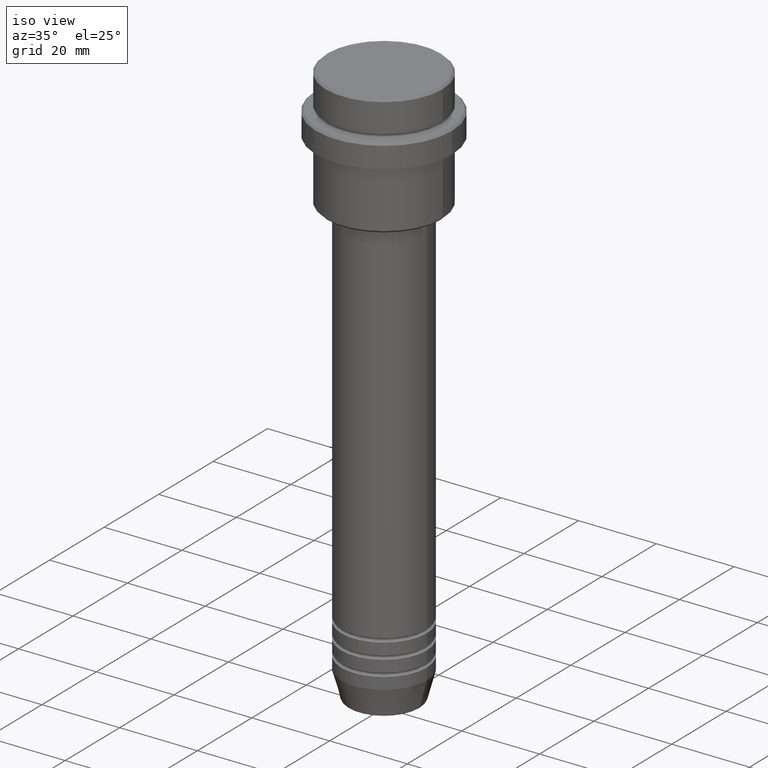
[diagram: clean part render]
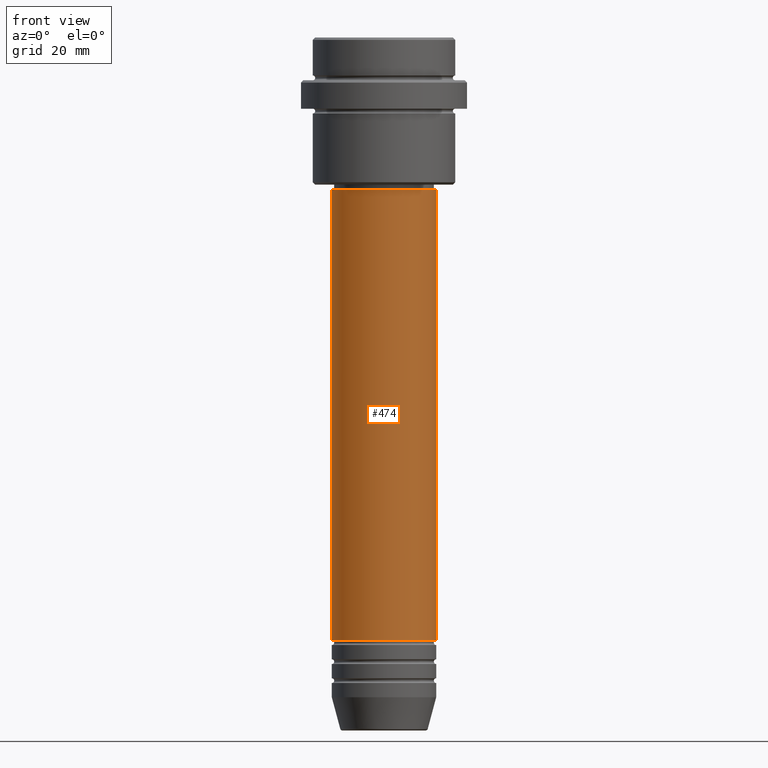
[diagram: tour spotlight — one face highlighted and labeled with its STEP entity id]
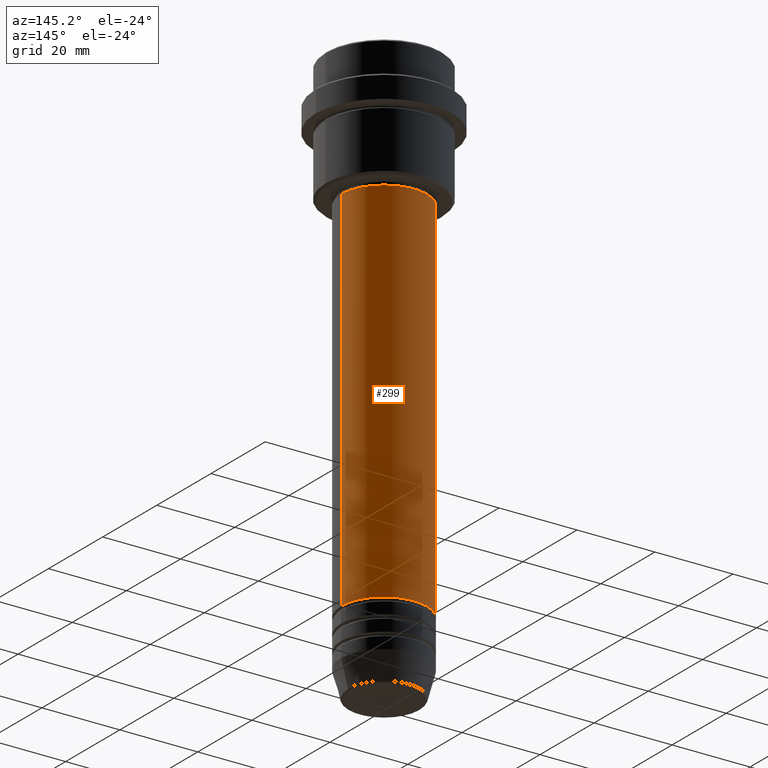
[diagram: tour spotlight — one face highlighted and labeled with its STEP entity id]
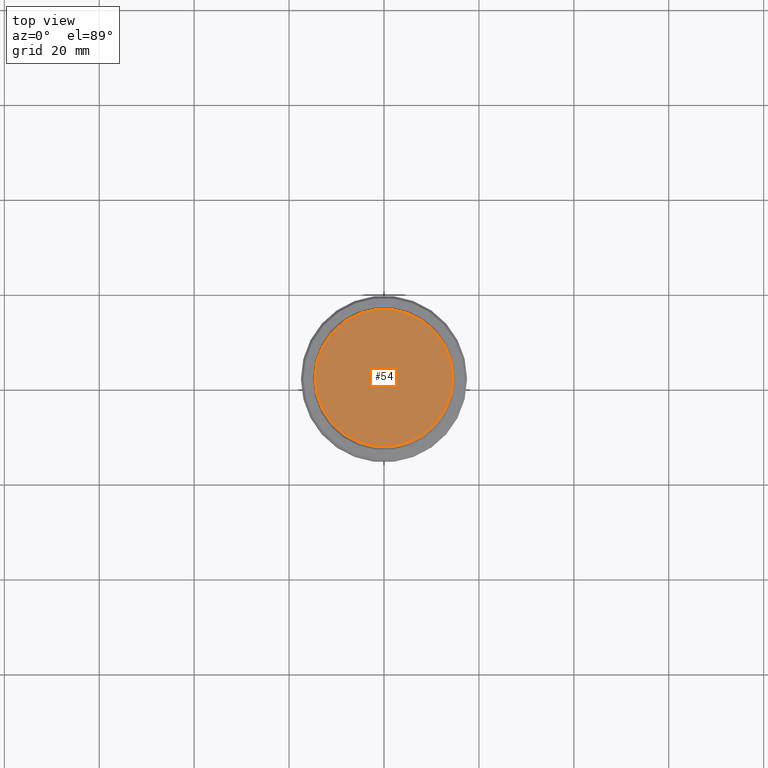
[diagram: tour spotlight — one face highlighted and labeled with its STEP entity id]
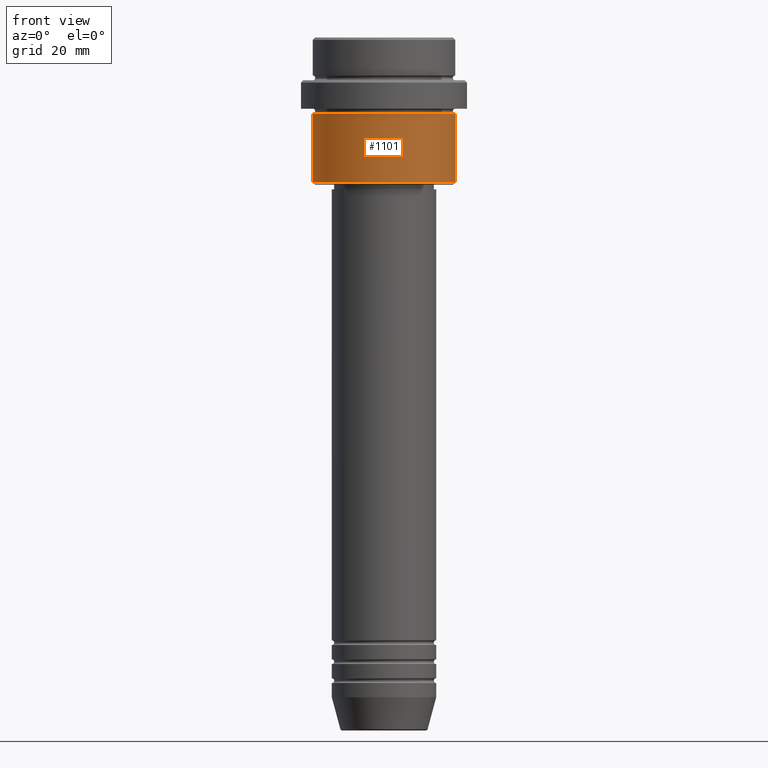
[diagram: tour spotlight — one face highlighted and labeled with its STEP entity id]
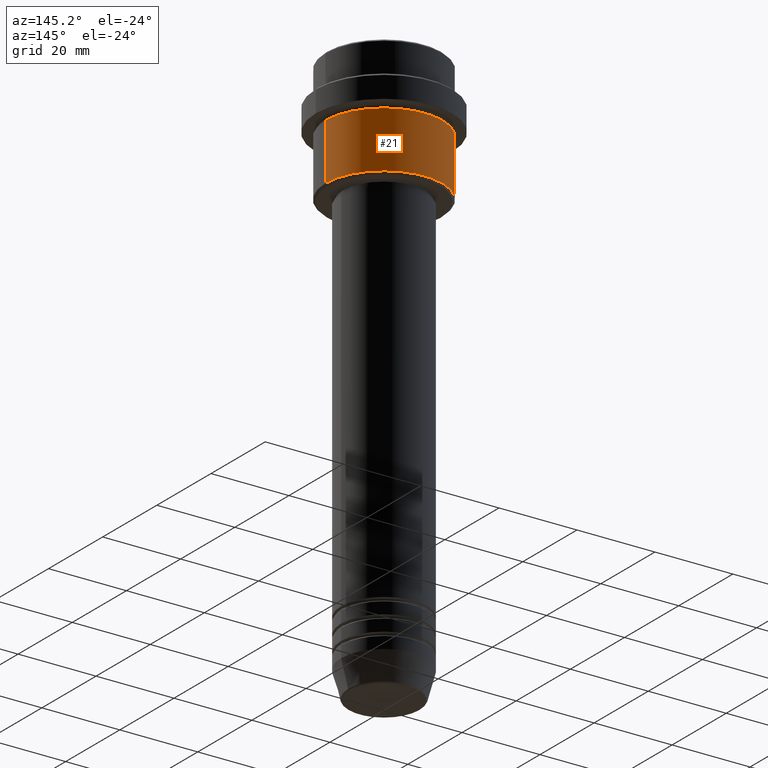
[diagram: tour spotlight — one face highlighted and labeled with its STEP entity id]
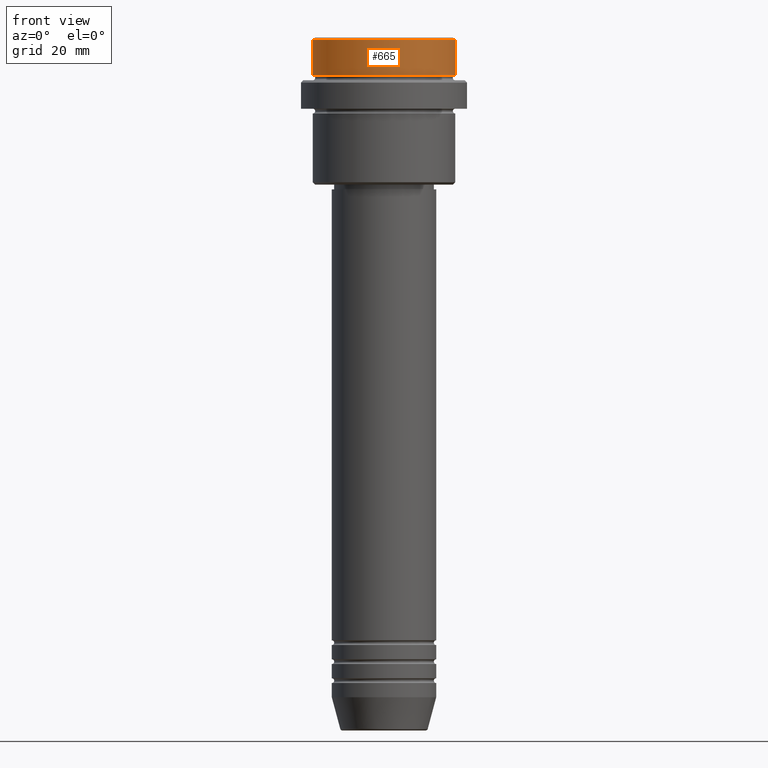
[diagram: tour spotlight — one face highlighted and labeled with its STEP entity id]
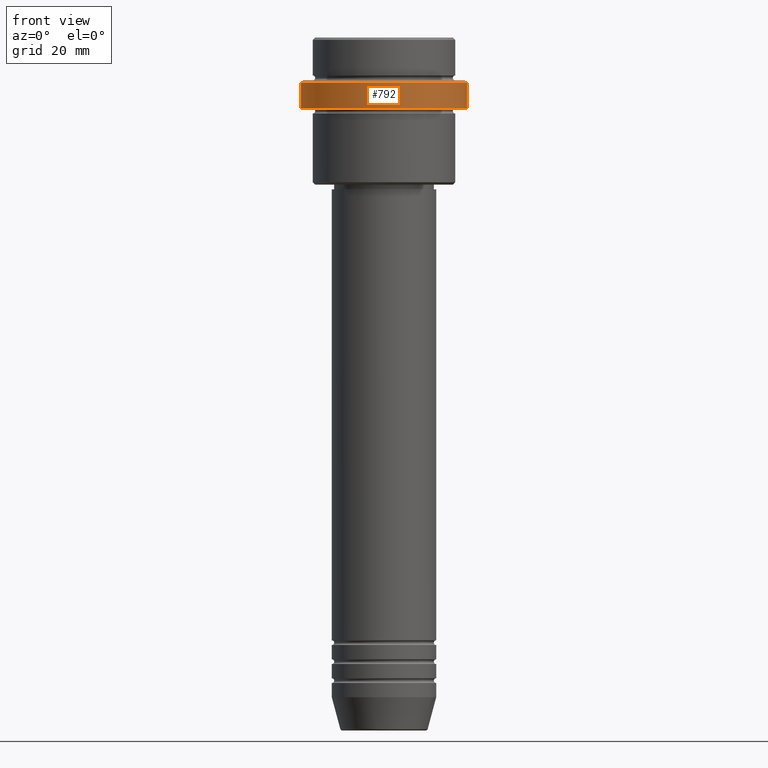
[diagram: tour spotlight — one face highlighted and labeled with its STEP entity id]
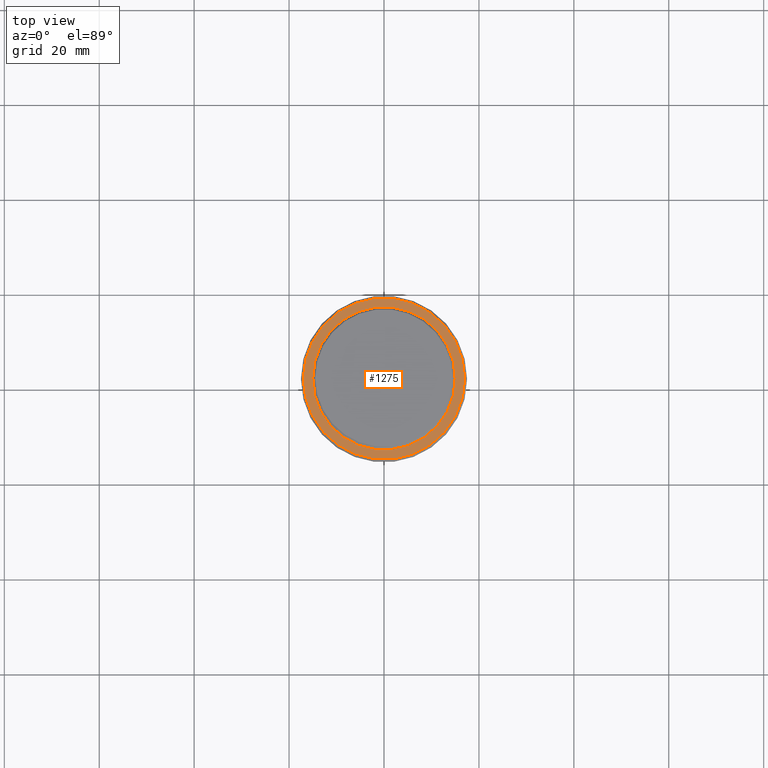
[diagram: tour spotlight — one face highlighted and labeled with its STEP entity id]
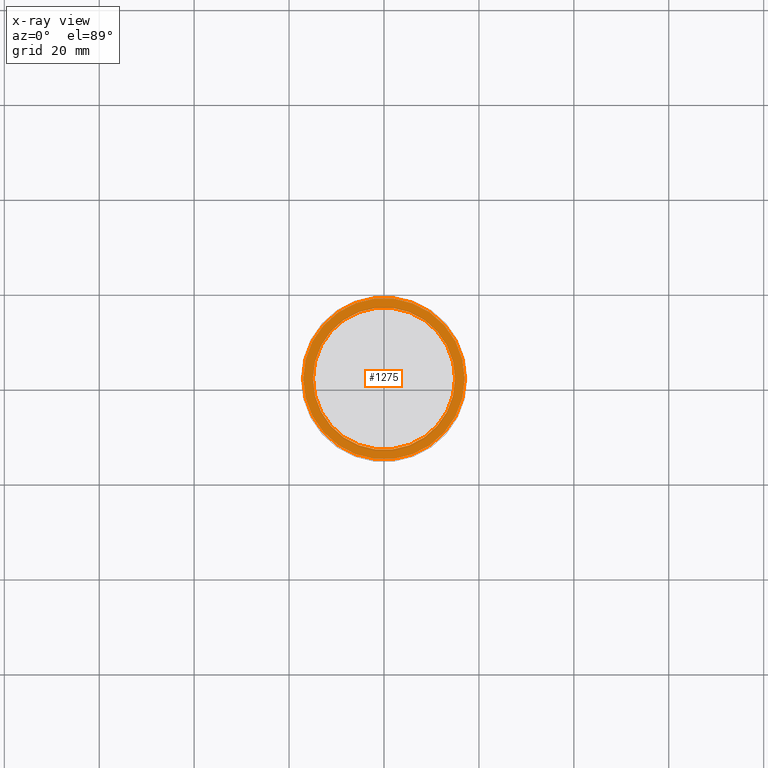
[diagram: x-ray of the same camera — body ghosted, this tour face saturated]
A machine part: a face-by-face anatomy tour. The part has 52 B-rep faces; the first image is the clean iso view, then the 8 largest visible faces are spotlighted one at a time (largest first), each with its STEP entity span.

Face 1 — front view, entity #474. In plain terms, the highlighted cylindrical surface (partial cylindrical patch) has radius 11 mm, axis along (-0, -0, 1).
Definition (entity closure, byte-faithful):
#32 = CYLINDRICAL_SURFACE ( 'NONE', #1250, 11.00000000000000000 ) ;
#119 = DIRECTION ( 'NONE',  ( -0.000000000000000000, -0.000000000000000000, 1.000000000000000000 ) ) ;
#137 = DIRECTION ( 'NONE',  ( 1.000000000000000000, 0.000000000000000000, 0.000000000000000000 ) ) ;
#160 = LINE ( 'NONE', #1255, #1231 ) ;
#196 = CARTESIAN_POINT ( 'NONE',  ( 11.00000000000000000, 0.000000000000000000, -126.9999999999998579 ) ) ;
#245 = VECTOR ( 'NONE', #119, 1000.000000000000000 ) ;
#247 = DIRECTION ( 'NONE',  ( -0.000000000000000000, -0.000000000000000000, 1.000000000000000000 ) ) ;
#285 = VERTEX_POINT ( 'NONE', #196 ) ;
#349 = ORIENTED_EDGE ( 'NONE', *, *, #958, .T. ) ;
#353 = CARTESIAN_POINT ( 'NONE',  ( -10.99999999999999822, 1.347111479062088207E-15, -31.99999999999999289 ) ) ;
#369 = VERTEX_POINT ( 'NONE', #485 ) ;
#407 = VERTEX_POINT ( 'NONE', #1227 ) ;
#468 = CARTESIAN_POINT ( 'NONE',  ( 0.000000000000000000, 0.000000000000000000, 0.000000000000000000 ) ) ;
#474 = ADVANCED_FACE ( 'NONE', ( #1015 ), #32, .T. ) ;
#485 = CARTESIAN_POINT ( 'NONE',  ( -11.00000000000000000, 1.347111479062088405E-15, -126.9999999999998579 ) ) ;
#609 = DIRECTION ( 'NONE',  ( -0.000000000000000000, -0.000000000000000000, 1.000000000000000000 ) ) ;
#617 = CIRCLE ( 'NONE', #931, 10.99999999999999822 ) ;
#679 = CARTESIAN_POINT ( 'NONE',  ( 0.000000000000000000, 0.000000000000000000, -31.99999999999999289 ) ) ;
#702 = ORIENTED_EDGE ( 'NONE', *, *, #1257, .F. ) ;
#763 = EDGE_CURVE ( 'NONE', #369, #285, #1087, .T. ) ;
#786 = CARTESIAN_POINT ( 'NONE',  ( 0.000000000000000000, 0.000000000000000000, -126.9999999999998579 ) ) ;
#875 = DIRECTION ( 'NONE',  ( 1.000000000000000000, 0.000000000000000000, 0.000000000000000000 ) ) ;
#907 = VERTEX_POINT ( 'NONE', #353 ) ;
#931 = AXIS2_PLACEMENT_3D ( 'NONE', #679, #247, #1329 ) ;
#958 = EDGE_CURVE ( 'NONE', #285, #407, #160, .T. ) ;
#1015 = FACE_OUTER_BOUND ( 'NONE', #1365, .T. ) ;
#1041 = AXIS2_PLACEMENT_3D ( 'NONE', #786, #1417, #875 ) ;
#1087 = CIRCLE ( 'NONE', #1041, 11.00000000000000000 ) ;
#1118 = LINE ( 'NONE', #1354, #245 ) ;
#1126 = DIRECTION ( 'NONE',  ( -0.000000000000000000, -0.000000000000000000, 1.000000000000000000 ) ) ;
#1227 = CARTESIAN_POINT ( 'NONE',  ( 10.99999999999999822, 0.000000000000000000, -31.99999999999999289 ) ) ;
#1230 = ORIENTED_EDGE ( 'NONE', *, *, #763, .T. ) ;
#1231 = VECTOR ( 'NONE', #609, 1000.000000000000000 ) ;
#1250 = AXIS2_PLACEMENT_3D ( 'NONE', #468, #1126, #137 ) ;
#1255 = CARTESIAN_POINT ( 'NONE',  ( 11.00000000000000000, 0.000000000000000000, 0.000000000000000000 ) ) ;
#1257 = EDGE_CURVE ( 'NONE', #907, #407, #617, .T. ) ;
#1329 = DIRECTION ( 'NONE',  ( 1.000000000000000000, 0.000000000000000000, 0.000000000000000000 ) ) ;
#1338 = EDGE_CURVE ( 'NONE', #369, #907, #1118, .T. ) ;
#1354 = CARTESIAN_POINT ( 'NONE',  ( -11.00000000000000000, 1.347111479062088405E-15, 0.000000000000000000 ) ) ;
#1365 = EDGE_LOOP ( 'NONE', ( #1397, #1230, #349, #702 ) ) ;
#1397 = ORIENTED_EDGE ( 'NONE', *, *, #1338, .F. ) ;
#1417 = DIRECTION ( 'NONE',  ( -0.000000000000000000, -0.000000000000000000, 1.000000000000000000 ) ) ;

Face 2 — auxiliary view, entity #299. In plain terms, the highlighted cylindrical surface (partial cylindrical patch) has radius 11 mm, axis along (-0, -0, 1).
Definition (entity closure, byte-faithful):
#20 = ORIENTED_EDGE ( 'NONE', *, *, #1199, .F. ) ;
#119 = DIRECTION ( 'NONE',  ( -0.000000000000000000, -0.000000000000000000, 1.000000000000000000 ) ) ;
#146 = DIRECTION ( 'NONE',  ( -0.000000000000000000, -0.000000000000000000, 1.000000000000000000 ) ) ;
#160 = LINE ( 'NONE', #1255, #1231 ) ;
#196 = CARTESIAN_POINT ( 'NONE',  ( 11.00000000000000000, 0.000000000000000000, -126.9999999999998579 ) ) ;
#228 = CARTESIAN_POINT ( 'NONE',  ( 0.000000000000000000, 0.000000000000000000, 0.000000000000000000 ) ) ;
#232 = CARTESIAN_POINT ( 'NONE',  ( 0.000000000000000000, 0.000000000000000000, -126.9999999999998579 ) ) ;
#245 = VECTOR ( 'NONE', #119, 1000.000000000000000 ) ;
#251 = ORIENTED_EDGE ( 'NONE', *, *, #368, .T. ) ;
#285 = VERTEX_POINT ( 'NONE', #196 ) ;
#299 = ADVANCED_FACE ( 'NONE', ( #776 ), #433, .T. ) ;
#353 = CARTESIAN_POINT ( 'NONE',  ( -10.99999999999999822, 1.347111479062088207E-15, -31.99999999999999289 ) ) ;
#361 = CIRCLE ( 'NONE', #477, 10.99999999999999822 ) ;
#368 = EDGE_CURVE ( 'NONE', #285, #369, #1180, .T. ) ;
#369 = VERTEX_POINT ( 'NONE', #485 ) ;
#407 = VERTEX_POINT ( 'NONE', #1227 ) ;
#433 = CYLINDRICAL_SURFACE ( 'NONE', #946, 11.00000000000000000 ) ;
#477 = AXIS2_PLACEMENT_3D ( 'NONE', #964, #1299, #658 ) ;
#485 = CARTESIAN_POINT ( 'NONE',  ( -11.00000000000000000, 1.347111479062088405E-15, -126.9999999999998579 ) ) ;
#511 = ORIENTED_EDGE ( 'NONE', *, *, #958, .F. ) ;
#593 = DIRECTION ( 'NONE',  ( 1.000000000000000000, 0.000000000000000000, 0.000000000000000000 ) ) ;
#609 = DIRECTION ( 'NONE',  ( -0.000000000000000000, -0.000000000000000000, 1.000000000000000000 ) ) ;
#658 = DIRECTION ( 'NONE',  ( 1.000000000000000000, 0.000000000000000000, 0.000000000000000000 ) ) ;
#776 = FACE_OUTER_BOUND ( 'NONE', #1098, .T. ) ;
#787 = DIRECTION ( 'NONE',  ( -0.000000000000000000, -0.000000000000000000, 1.000000000000000000 ) ) ;
#907 = VERTEX_POINT ( 'NONE', #353 ) ;
#924 = AXIS2_PLACEMENT_3D ( 'NONE', #232, #146, #593 ) ;
#946 = AXIS2_PLACEMENT_3D ( 'NONE', #228, #787, #1078 ) ;
#958 = EDGE_CURVE ( 'NONE', #285, #407, #160, .T. ) ;
#964 = CARTESIAN_POINT ( 'NONE',  ( 0.000000000000000000, 0.000000000000000000, -31.99999999999999289 ) ) ;
#1078 = DIRECTION ( 'NONE',  ( 1.000000000000000000, 0.000000000000000000, 0.000000000000000000 ) ) ;
#1098 = EDGE_LOOP ( 'NONE', ( #251, #1187, #20, #511 ) ) ;
#1118 = LINE ( 'NONE', #1354, #245 ) ;
#1180 = CIRCLE ( 'NONE', #924, 11.00000000000000000 ) ;
#1187 = ORIENTED_EDGE ( 'NONE', *, *, #1338, .T. ) ;
#1199 = EDGE_CURVE ( 'NONE', #407, #907, #361, .T. ) ;
#1227 = CARTESIAN_POINT ( 'NONE',  ( 10.99999999999999822, 0.000000000000000000, -31.99999999999999289 ) ) ;
#1231 = VECTOR ( 'NONE', #609, 1000.000000000000000 ) ;
#1255 = CARTESIAN_POINT ( 'NONE',  ( 11.00000000000000000, 0.000000000000000000, 0.000000000000000000 ) ) ;
#1299 = DIRECTION ( 'NONE',  ( -0.000000000000000000, -0.000000000000000000, 1.000000000000000000 ) ) ;
#1338 = EDGE_CURVE ( 'NONE', #369, #907, #1118, .T. ) ;
#1354 = CARTESIAN_POINT ( 'NONE',  ( -11.00000000000000000, 1.347111479062088405E-15, 0.000000000000000000 ) ) ;

Face 3 — top view, entity #54. In plain terms, the highlighted planar face has unit normal (0, -0, 1).
Definition (entity closure, byte-faithful):
#50 = DIRECTION ( 'NONE',  ( 1.000000000000000000, 0.000000000000000000, 0.000000000000000000 ) ) ;
#54 = ADVANCED_FACE ( 'NONE', ( #1244 ), #630, .T. ) ;
#56 = AXIS2_PLACEMENT_3D ( 'NONE', #827, #171, #50 ) ;
#66 = DIRECTION ( 'NONE',  ( 1.000000000000000000, 0.000000000000000000, 0.000000000000000000 ) ) ;
#171 = DIRECTION ( 'NONE',  ( -0.000000000000000000, -0.000000000000000000, 1.000000000000000000 ) ) ;
#208 = DIRECTION ( 'NONE',  ( 1.000000000000000000, 0.000000000000000000, 0.000000000000000000 ) ) ;
#211 = VERTEX_POINT ( 'NONE', #283 ) ;
#283 = CARTESIAN_POINT ( 'NONE',  ( 14.49999999999999645, 1.806354028742345802E-15, 0.000000000000000000 ) ) ;
#343 = ORIENTED_EDGE ( 'NONE', *, *, #487, .T. ) ;
#409 = CARTESIAN_POINT ( 'NONE',  ( 0.000000000000000000, 0.000000000000000000, 0.000000000000000000 ) ) ;
#448 = CIRCLE ( 'NONE', #565, 14.49999999999999645 ) ;
#487 = EDGE_CURVE ( 'NONE', #211, #977, #448, .T. ) ;
#492 = CIRCLE ( 'NONE', #56, 14.49999999999999645 ) ;
#504 = CARTESIAN_POINT ( 'NONE',  ( -14.49999999999999645, 0.000000000000000000, 0.000000000000000000 ) ) ;
#518 = CARTESIAN_POINT ( 'NONE',  ( 0.000000000000000000, 0.000000000000000000, 0.000000000000000000 ) ) ;
#565 = AXIS2_PLACEMENT_3D ( 'NONE', #518, #1390, #66 ) ;
#630 = PLANE ( 'NONE',  #1057 ) ;
#644 = ORIENTED_EDGE ( 'NONE', *, *, #1037, .T. ) ;
#827 = CARTESIAN_POINT ( 'NONE',  ( 0.000000000000000000, 0.000000000000000000, 0.000000000000000000 ) ) ;
#960 = DIRECTION ( 'NONE',  ( 0.000000000000000000, -0.000000000000000000, 1.000000000000000000 ) ) ;
#977 = VERTEX_POINT ( 'NONE', #504 ) ;
#1037 = EDGE_CURVE ( 'NONE', #977, #211, #492, .T. ) ;
#1057 = AXIS2_PLACEMENT_3D ( 'NONE', #409, #960, #208 ) ;
#1107 = EDGE_LOOP ( 'NONE', ( #644, #343 ) ) ;
#1244 = FACE_OUTER_BOUND ( 'NONE', #1107, .T. ) ;
#1390 = DIRECTION ( 'NONE',  ( -0.000000000000000000, -0.000000000000000000, 1.000000000000000000 ) ) ;

Face 4 — front view, entity #1101. In plain terms, the highlighted cylindrical surface (partial cylindrical patch) has radius 15 mm, axis along (-0, -0, 1).
Definition (entity closure, byte-faithful):
#12 = CARTESIAN_POINT ( 'NONE',  ( 0.000000000000000000, 0.000000000000000000, -30.50000000000001066 ) ) ;
#49 = EDGE_CURVE ( 'NONE', #311, #140, #725, .T. ) ;
#140 = VERTEX_POINT ( 'NONE', #173 ) ;
#173 = CARTESIAN_POINT ( 'NONE',  ( 15.00000000000000000, 0.000000000000000000, -30.50000000000001066 ) ) ;
#227 = DIRECTION ( 'NONE',  ( -0.000000000000000000, -0.000000000000000000, 1.000000000000000000 ) ) ;
#296 = DIRECTION ( 'NONE',  ( -0.000000000000000000, -0.000000000000000000, 1.000000000000000000 ) ) ;
#311 = VERTEX_POINT ( 'NONE', #1198 ) ;
#312 = VECTOR ( 'NONE', #767, 1000.000000000000000 ) ;
#324 = CARTESIAN_POINT ( 'NONE',  ( -15.00000000000000000, 1.836970198721029589E-15, 0.000000000000000000 ) ) ;
#327 = ORIENTED_EDGE ( 'NONE', *, *, #833, .T. ) ;
#362 = VERTEX_POINT ( 'NONE', #1133 ) ;
#370 = DIRECTION ( 'NONE',  ( -1.000000000000000000, 0.000000000000000000, 0.000000000000000000 ) ) ;
#426 = CIRCLE ( 'NONE', #808, 15.00000000000000178 ) ;
#524 = CYLINDRICAL_SURFACE ( 'NONE', #759, 15.00000000000000000 ) ;
#550 = CARTESIAN_POINT ( 'NONE',  ( 0.000000000000000000, 0.000000000000000000, 0.000000000000000000 ) ) ;
#656 = EDGE_CURVE ( 'NONE', #362, #1019, #426, .T. ) ;
#662 = EDGE_LOOP ( 'NONE', ( #741, #1331, #327, #1092 ) ) ;
#710 = LINE ( 'NONE', #1337, #973 ) ;
#725 = CIRCLE ( 'NONE', #965, 15.00000000000000000 ) ;
#741 = ORIENTED_EDGE ( 'NONE', *, *, #1141, .F. ) ;
#759 = AXIS2_PLACEMENT_3D ( 'NONE', #550, #1196, #1058 ) ;
#762 = CARTESIAN_POINT ( 'NONE',  ( 0.000000000000000000, 0.000000000000000000, -15.99999999999997335 ) ) ;
#767 = DIRECTION ( 'NONE',  ( -0.000000000000000000, -0.000000000000000000, 1.000000000000000000 ) ) ;
#808 = AXIS2_PLACEMENT_3D ( 'NONE', #762, #227, #858 ) ;
#833 = EDGE_CURVE ( 'NONE', #140, #1019, #710, .T. ) ;
#858 = DIRECTION ( 'NONE',  ( 1.000000000000000000, 0.000000000000000000, 0.000000000000000000 ) ) ;
#935 = CARTESIAN_POINT ( 'NONE',  ( 15.00000000000000178, 0.000000000000000000, -15.99999999999997335 ) ) ;
#965 = AXIS2_PLACEMENT_3D ( 'NONE', #12, #296, #370 ) ;
#973 = VECTOR ( 'NONE', #1143, 1000.000000000000000 ) ;
#1019 = VERTEX_POINT ( 'NONE', #935 ) ;
#1058 = DIRECTION ( 'NONE',  ( 1.000000000000000000, 0.000000000000000000, 0.000000000000000000 ) ) ;
#1092 = ORIENTED_EDGE ( 'NONE', *, *, #656, .F. ) ;
#1101 = ADVANCED_FACE ( 'NONE', ( #1201 ), #524, .T. ) ;
#1133 = CARTESIAN_POINT ( 'NONE',  ( -15.00000000000000355, 1.836970198721029983E-15, -15.99999999999997335 ) ) ;
#1141 = EDGE_CURVE ( 'NONE', #311, #362, #1304, .T. ) ;
#1143 = DIRECTION ( 'NONE',  ( -0.000000000000000000, -0.000000000000000000, 1.000000000000000000 ) ) ;
#1196 = DIRECTION ( 'NONE',  ( -0.000000000000000000, -0.000000000000000000, 1.000000000000000000 ) ) ;
#1198 = CARTESIAN_POINT ( 'NONE',  ( -15.00000000000000000, 1.836970198721029589E-15, -30.50000000000001066 ) ) ;
#1201 = FACE_OUTER_BOUND ( 'NONE', #662, .T. ) ;
#1304 = LINE ( 'NONE', #324, #312 ) ;
#1331 = ORIENTED_EDGE ( 'NONE', *, *, #49, .T. ) ;
#1337 = CARTESIAN_POINT ( 'NONE',  ( 15.00000000000000000, 0.000000000000000000, 0.000000000000000000 ) ) ;

Face 5 — auxiliary view, entity #21. In plain terms, the highlighted cylindrical surface (partial cylindrical patch) has radius 15 mm, axis along (-0, -0, 1).
Definition (entity closure, byte-faithful):
#21 = ADVANCED_FACE ( 'NONE', ( #1311 ), #671, .T. ) ;
#77 = CIRCLE ( 'NONE', #1294, 15.00000000000000178 ) ;
#136 = CARTESIAN_POINT ( 'NONE',  ( 0.000000000000000000, 0.000000000000000000, -15.99999999999997335 ) ) ;
#140 = VERTEX_POINT ( 'NONE', #173 ) ;
#173 = CARTESIAN_POINT ( 'NONE',  ( 15.00000000000000000, 0.000000000000000000, -30.50000000000001066 ) ) ;
#218 = AXIS2_PLACEMENT_3D ( 'NONE', #403, #383, #1278 ) ;
#304 = AXIS2_PLACEMENT_3D ( 'NONE', #1356, #499, #940 ) ;
#311 = VERTEX_POINT ( 'NONE', #1198 ) ;
#312 = VECTOR ( 'NONE', #767, 1000.000000000000000 ) ;
#324 = CARTESIAN_POINT ( 'NONE',  ( -15.00000000000000000, 1.836970198721029589E-15, 0.000000000000000000 ) ) ;
#362 = VERTEX_POINT ( 'NONE', #1133 ) ;
#383 = DIRECTION ( 'NONE',  ( -0.000000000000000000, -0.000000000000000000, 1.000000000000000000 ) ) ;
#403 = CARTESIAN_POINT ( 'NONE',  ( 0.000000000000000000, 0.000000000000000000, -30.50000000000001066 ) ) ;
#499 = DIRECTION ( 'NONE',  ( -0.000000000000000000, -0.000000000000000000, 1.000000000000000000 ) ) ;
#671 = CYLINDRICAL_SURFACE ( 'NONE', #304, 15.00000000000000000 ) ;
#710 = LINE ( 'NONE', #1337, #973 ) ;
#737 = DIRECTION ( 'NONE',  ( -0.000000000000000000, -0.000000000000000000, 1.000000000000000000 ) ) ;
#767 = DIRECTION ( 'NONE',  ( -0.000000000000000000, -0.000000000000000000, 1.000000000000000000 ) ) ;
#820 = ORIENTED_EDGE ( 'NONE', *, *, #833, .F. ) ;
#833 = EDGE_CURVE ( 'NONE', #140, #1019, #710, .T. ) ;
#854 = DIRECTION ( 'NONE',  ( 1.000000000000000000, 0.000000000000000000, 0.000000000000000000 ) ) ;
#920 = EDGE_CURVE ( 'NONE', #1019, #362, #77, .T. ) ;
#935 = CARTESIAN_POINT ( 'NONE',  ( 15.00000000000000178, 0.000000000000000000, -15.99999999999997335 ) ) ;
#940 = DIRECTION ( 'NONE',  ( 1.000000000000000000, 0.000000000000000000, 0.000000000000000000 ) ) ;
#972 = EDGE_LOOP ( 'NONE', ( #1127, #1309, #1342, #820 ) ) ;
#973 = VECTOR ( 'NONE', #1143, 1000.000000000000000 ) ;
#1004 = EDGE_CURVE ( 'NONE', #140, #311, #1157, .T. ) ;
#1019 = VERTEX_POINT ( 'NONE', #935 ) ;
#1127 = ORIENTED_EDGE ( 'NONE', *, *, #1004, .T. ) ;
#1133 = CARTESIAN_POINT ( 'NONE',  ( -15.00000000000000355, 1.836970198721029983E-15, -15.99999999999997335 ) ) ;
#1141 = EDGE_CURVE ( 'NONE', #311, #362, #1304, .T. ) ;
#1143 = DIRECTION ( 'NONE',  ( -0.000000000000000000, -0.000000000000000000, 1.000000000000000000 ) ) ;
#1157 = CIRCLE ( 'NONE', #218, 15.00000000000000000 ) ;
#1198 = CARTESIAN_POINT ( 'NONE',  ( -15.00000000000000000, 1.836970198721029589E-15, -30.50000000000001066 ) ) ;
#1278 = DIRECTION ( 'NONE',  ( -1.000000000000000000, 0.000000000000000000, 0.000000000000000000 ) ) ;
#1294 = AXIS2_PLACEMENT_3D ( 'NONE', #136, #737, #854 ) ;
#1304 = LINE ( 'NONE', #324, #312 ) ;
#1309 = ORIENTED_EDGE ( 'NONE', *, *, #1141, .T. ) ;
#1311 = FACE_OUTER_BOUND ( 'NONE', #972, .T. ) ;
#1337 = CARTESIAN_POINT ( 'NONE',  ( 15.00000000000000000, 0.000000000000000000, 0.000000000000000000 ) ) ;
#1342 = ORIENTED_EDGE ( 'NONE', *, *, #920, .F. ) ;
#1356 = CARTESIAN_POINT ( 'NONE',  ( 0.000000000000000000, 0.000000000000000000, 0.000000000000000000 ) ) ;

Face 6 — front view, entity #665. In plain terms, the highlighted cylindrical surface (partial cylindrical patch) has radius 15 mm, axis along (-0, -0, 1).
Definition (entity closure, byte-faithful):
#1 = CARTESIAN_POINT ( 'NONE',  ( -15.00000000000000000, 1.836970198721029589E-15, -0.4999999999999970024 ) ) ;
#116 = EDGE_LOOP ( 'NONE', ( #781, #147, #202, #706 ) ) ;
#123 = CARTESIAN_POINT ( 'NONE',  ( 0.000000000000000000, 0.000000000000000000, -7.999999999999998224 ) ) ;
#147 = ORIENTED_EDGE ( 'NONE', *, *, #432, .T. ) ;
#194 = CARTESIAN_POINT ( 'NONE',  ( -15.00000000000000000, 1.836970198721029589E-15, 0.000000000000000000 ) ) ;
#202 = ORIENTED_EDGE ( 'NONE', *, *, #649, .T. ) ;
#319 = LINE ( 'NONE', #194, #1205 ) ;
#328 = VERTEX_POINT ( 'NONE', #1 ) ;
#347 = DIRECTION ( 'NONE',  ( 1.000000000000000000, 0.000000000000000000, 0.000000000000000000 ) ) ;
#352 = AXIS2_PLACEMENT_3D ( 'NONE', #1030, #682, #347 ) ;
#384 = EDGE_CURVE ( 'NONE', #547, #328, #1023, .T. ) ;
#394 = CARTESIAN_POINT ( 'NONE',  ( -15.00000000000000000, 1.836970198721029589E-15, -7.999999999999998224 ) ) ;
#432 = EDGE_CURVE ( 'NONE', #601, #1333, #472, .T. ) ;
#472 = CIRCLE ( 'NONE', #779, 15.00000000000000000 ) ;
#479 = CARTESIAN_POINT ( 'NONE',  ( 15.00000000000000000, 0.000000000000000000, -7.999999999999998224 ) ) ;
#547 = VERTEX_POINT ( 'NONE', #743 ) ;
#558 = DIRECTION ( 'NONE',  ( -0.000000000000000000, -0.000000000000000000, 1.000000000000000000 ) ) ;
#584 = DIRECTION ( 'NONE',  ( -0.000000000000000000, -0.000000000000000000, 1.000000000000000000 ) ) ;
#601 = VERTEX_POINT ( 'NONE', #394 ) ;
#649 = EDGE_CURVE ( 'NONE', #1333, #547, #1182, .T. ) ;
#665 = ADVANCED_FACE ( 'NONE', ( #1190 ), #985, .T. ) ;
#674 = EDGE_CURVE ( 'NONE', #601, #328, #319, .T. ) ;
#682 = DIRECTION ( 'NONE',  ( 0.000000000000000000, 0.000000000000000000, -1.000000000000000000 ) ) ;
#706 = ORIENTED_EDGE ( 'NONE', *, *, #384, .T. ) ;
#743 = CARTESIAN_POINT ( 'NONE',  ( 15.00000000000000000, 0.000000000000000000, -0.4999999999999970024 ) ) ;
#779 = AXIS2_PLACEMENT_3D ( 'NONE', #123, #584, #1121 ) ;
#781 = ORIENTED_EDGE ( 'NONE', *, *, #674, .F. ) ;
#871 = CARTESIAN_POINT ( 'NONE',  ( 15.00000000000000000, 0.000000000000000000, 0.000000000000000000 ) ) ;
#968 = AXIS2_PLACEMENT_3D ( 'NONE', #979, #991, #1314 ) ;
#979 = CARTESIAN_POINT ( 'NONE',  ( 0.000000000000000000, 0.000000000000000000, 0.000000000000000000 ) ) ;
#985 = CYLINDRICAL_SURFACE ( 'NONE', #968, 15.00000000000000000 ) ;
#991 = DIRECTION ( 'NONE',  ( -0.000000000000000000, -0.000000000000000000, 1.000000000000000000 ) ) ;
#1023 = CIRCLE ( 'NONE', #352, 15.00000000000000000 ) ;
#1030 = CARTESIAN_POINT ( 'NONE',  ( 0.000000000000000000, 0.000000000000000000, -0.4999999999999970024 ) ) ;
#1115 = VECTOR ( 'NONE', #558, 1000.000000000000000 ) ;
#1121 = DIRECTION ( 'NONE',  ( 1.000000000000000000, 0.000000000000000000, 0.000000000000000000 ) ) ;
#1182 = LINE ( 'NONE', #871, #1115 ) ;
#1190 = FACE_OUTER_BOUND ( 'NONE', #116, .T. ) ;
#1205 = VECTOR ( 'NONE', #1412, 1000.000000000000000 ) ;
#1314 = DIRECTION ( 'NONE',  ( 1.000000000000000000, 0.000000000000000000, 0.000000000000000000 ) ) ;
#1333 = VERTEX_POINT ( 'NONE', #479 ) ;
#1412 = DIRECTION ( 'NONE',  ( -0.000000000000000000, -0.000000000000000000, 1.000000000000000000 ) ) ;

Face 7 — front view, entity #792. In plain terms, the highlighted cylindrical surface (partial cylindrical patch) has radius 17.5 mm, axis along (-0, -0, 1).
Definition (entity closure, byte-faithful):
#6 = EDGE_CURVE ( 'NONE', #100, #434, #260, .T. ) ;
#13 = LINE ( 'NONE', #800, #1369 ) ;
#26 = CARTESIAN_POINT ( 'NONE',  ( 17.50000000000000000, 0.000000000000000000, -14.99999999999998757 ) ) ;
#33 = ORIENTED_EDGE ( 'NONE', *, *, #1320, .F. ) ;
#100 = VERTEX_POINT ( 'NONE', #392 ) ;
#102 = CARTESIAN_POINT ( 'NONE',  ( 0.000000000000000000, 0.000000000000000000, -9.499999999999987566 ) ) ;
#188 = VERTEX_POINT ( 'NONE', #842 ) ;
#225 = EDGE_CURVE ( 'NONE', #188, #453, #1384, .T. ) ;
#260 = CIRCLE ( 'NONE', #420, 17.50000000000000000 ) ;
#351 = LINE ( 'NONE', #809, #454 ) ;
#365 = DIRECTION ( 'NONE',  ( 1.000000000000000000, 0.000000000000000000, 0.000000000000000000 ) ) ;
#392 = CARTESIAN_POINT ( 'NONE',  ( 17.50000000000000000, 0.000000000000000000, -9.499999999999987566 ) ) ;
#420 = AXIS2_PLACEMENT_3D ( 'NONE', #102, #548, #982 ) ;
#434 = VERTEX_POINT ( 'NONE', #572 ) ;
#452 = FACE_OUTER_BOUND ( 'NONE', #1152, .T. ) ;
#453 = VERTEX_POINT ( 'NONE', #26 ) ;
#454 = VECTOR ( 'NONE', #1232, 1000.000000000000000 ) ;
#514 = ORIENTED_EDGE ( 'NONE', *, *, #225, .T. ) ;
#535 = AXIS2_PLACEMENT_3D ( 'NONE', #943, #1383, #850 ) ;
#548 = DIRECTION ( 'NONE',  ( 0.000000000000000000, 0.000000000000000000, -1.000000000000000000 ) ) ;
#572 = CARTESIAN_POINT ( 'NONE',  ( -17.50000000000000000, 2.143131898507868248E-15, -9.499999999999987566 ) ) ;
#577 = DIRECTION ( 'NONE',  ( -0.000000000000000000, -0.000000000000000000, 1.000000000000000000 ) ) ;
#704 = CARTESIAN_POINT ( 'NONE',  ( 0.000000000000000000, 0.000000000000000000, 0.000000000000000000 ) ) ;
#792 = ADVANCED_FACE ( 'NONE', ( #452 ), #1348, .T. ) ;
#800 = CARTESIAN_POINT ( 'NONE',  ( -17.50000000000000000, 2.143131898507868248E-15, 0.000000000000000000 ) ) ;
#809 = CARTESIAN_POINT ( 'NONE',  ( 17.50000000000000000, 0.000000000000000000, 0.000000000000000000 ) ) ;
#842 = CARTESIAN_POINT ( 'NONE',  ( -17.50000000000000000, 2.143131898507868248E-15, -14.99999999999998757 ) ) ;
#850 = DIRECTION ( 'NONE',  ( 1.000000000000000000, 0.000000000000000000, 0.000000000000000000 ) ) ;
#943 = CARTESIAN_POINT ( 'NONE',  ( 0.000000000000000000, 0.000000000000000000, -14.99999999999998757 ) ) ;
#950 = ORIENTED_EDGE ( 'NONE', *, *, #1367, .T. ) ;
#982 = DIRECTION ( 'NONE',  ( 1.000000000000000000, 0.000000000000000000, 0.000000000000000000 ) ) ;
#1035 = ORIENTED_EDGE ( 'NONE', *, *, #6, .T. ) ;
#1124 = DIRECTION ( 'NONE',  ( -0.000000000000000000, -0.000000000000000000, 1.000000000000000000 ) ) ;
#1152 = EDGE_LOOP ( 'NONE', ( #33, #514, #950, #1035 ) ) ;
#1232 = DIRECTION ( 'NONE',  ( -0.000000000000000000, -0.000000000000000000, 1.000000000000000000 ) ) ;
#1320 = EDGE_CURVE ( 'NONE', #188, #434, #13, .T. ) ;
#1348 = CYLINDRICAL_SURFACE ( 'NONE', #1411, 17.50000000000000000 ) ;
#1367 = EDGE_CURVE ( 'NONE', #453, #100, #351, .T. ) ;
#1369 = VECTOR ( 'NONE', #1124, 1000.000000000000000 ) ;
#1383 = DIRECTION ( 'NONE',  ( -0.000000000000000000, -0.000000000000000000, 1.000000000000000000 ) ) ;
#1384 = CIRCLE ( 'NONE', #535, 17.50000000000000000 ) ;
#1411 = AXIS2_PLACEMENT_3D ( 'NONE', #704, #577, #365 ) ;

Face 8 — top view, entity #1275. An x-ray twin of the same camera follows (body ghosted, this face saturated) — the face is partly hidden behind the body. In plain terms, the highlighted planar face has unit normal (0, -0, 1).
Definition (entity closure, byte-faithful):
#3 = VERTEX_POINT ( 'NONE', #1200 ) ;
#5 = DIRECTION ( 'NONE',  ( -0.000000000000000000, -0.000000000000000000, 1.000000000000000000 ) ) ;
#7 = DIRECTION ( 'NONE',  ( 1.000000000000000000, 0.000000000000000000, 0.000000000000000000 ) ) ;
#55 = AXIS2_PLACEMENT_3D ( 'NONE', #632, #949, #1146 ) ;
#60 = CARTESIAN_POINT ( 'NONE',  ( -14.99999999999999467, 1.836970198721029194E-15, -8.999999999999987566 ) ) ;
#67 = DIRECTION ( 'NONE',  ( 1.000000000000000000, 0.000000000000000000, 0.000000000000000000 ) ) ;
#88 = ORIENTED_EDGE ( 'NONE', *, *, #718, .T. ) ;
#120 = AXIS2_PLACEMENT_3D ( 'NONE', #1391, #405, #67 ) ;
#130 = EDGE_CURVE ( 'NONE', #561, #198, #447, .T. ) ;
#135 = CARTESIAN_POINT ( 'NONE',  ( 0.000000000000000000, 14.49999999999999467, -8.999999999999987566 ) ) ;
#189 = CIRCLE ( 'NONE', #263, 17.00000000000001421 ) ;
#198 = VERTEX_POINT ( 'NONE', #60 ) ;
#235 = EDGE_CURVE ( 'NONE', #3, #1279, #751, .T. ) ;
#256 = EDGE_LOOP ( 'NONE', ( #1010, #901 ) ) ;
#263 = AXIS2_PLACEMENT_3D ( 'NONE', #880, #5, #301 ) ;
#301 = DIRECTION ( 'NONE',  ( 1.000000000000000000, 0.000000000000000000, 0.000000000000000000 ) ) ;
#307 = CIRCLE ( 'NONE', #55, 14.99999999999999467 ) ;
#405 = DIRECTION ( 'NONE',  ( 0.000000000000000000, 0.000000000000000000, -1.000000000000000000 ) ) ;
#447 = CIRCLE ( 'NONE', #120, 14.99999999999999467 ) ;
#467 = PLANE ( 'NONE',  #813 ) ;
#561 = VERTEX_POINT ( 'NONE', #929 ) ;
#566 = FACE_OUTER_BOUND ( 'NONE', #885, .T. ) ;
#582 = EDGE_CURVE ( 'NONE', #198, #561, #307, .T. ) ;
#632 = CARTESIAN_POINT ( 'NONE',  ( 0.000000000000000000, 0.000000000000000000, -8.999999999999987566 ) ) ;
#718 = EDGE_CURVE ( 'NONE', #1279, #3, #189, .T. ) ;
#739 = CARTESIAN_POINT ( 'NONE',  ( 0.000000000000000000, 0.000000000000000000, -8.999999999999987566 ) ) ;
#751 = CIRCLE ( 'NONE', #1204, 17.00000000000001421 ) ;
#813 = AXIS2_PLACEMENT_3D ( 'NONE', #135, #903, #1321 ) ;
#880 = CARTESIAN_POINT ( 'NONE',  ( 0.000000000000000000, 0.000000000000000000, -8.999999999999987566 ) ) ;
#885 = EDGE_LOOP ( 'NONE', ( #1163, #88 ) ) ;
#894 = CARTESIAN_POINT ( 'NONE',  ( 17.00000000000001421, 2.112515728529185250E-15, -8.999999999999987566 ) ) ;
#901 = ORIENTED_EDGE ( 'NONE', *, *, #582, .T. ) ;
#903 = DIRECTION ( 'NONE',  ( 0.000000000000000000, -0.000000000000000000, 1.000000000000000000 ) ) ;
#916 = FACE_BOUND ( 'NONE', #256, .T. ) ;
#929 = CARTESIAN_POINT ( 'NONE',  ( 14.99999999999999467, 0.000000000000000000, -8.999999999999987566 ) ) ;
#949 = DIRECTION ( 'NONE',  ( 0.000000000000000000, 0.000000000000000000, -1.000000000000000000 ) ) ;
#986 = DIRECTION ( 'NONE',  ( -0.000000000000000000, -0.000000000000000000, 1.000000000000000000 ) ) ;
#1010 = ORIENTED_EDGE ( 'NONE', *, *, #130, .T. ) ;
#1146 = DIRECTION ( 'NONE',  ( 1.000000000000000000, 0.000000000000000000, 0.000000000000000000 ) ) ;
#1163 = ORIENTED_EDGE ( 'NONE', *, *, #235, .T. ) ;
#1200 = CARTESIAN_POINT ( 'NONE',  ( -17.00000000000001421, 0.000000000000000000, -8.999999999999987566 ) ) ;
#1204 = AXIS2_PLACEMENT_3D ( 'NONE', #739, #986, #7 ) ;
#1275 = ADVANCED_FACE ( 'NONE', ( #566, #916 ), #467, .T. ) ;
#1279 = VERTEX_POINT ( 'NONE', #894 ) ;
#1321 = DIRECTION ( 'NONE',  ( 1.000000000000000000, 0.000000000000000000, 0.000000000000000000 ) ) ;
#1391 = CARTESIAN_POINT ( 'NONE',  ( 0.000000000000000000, 0.000000000000000000, -8.999999999999987566 ) ) ;